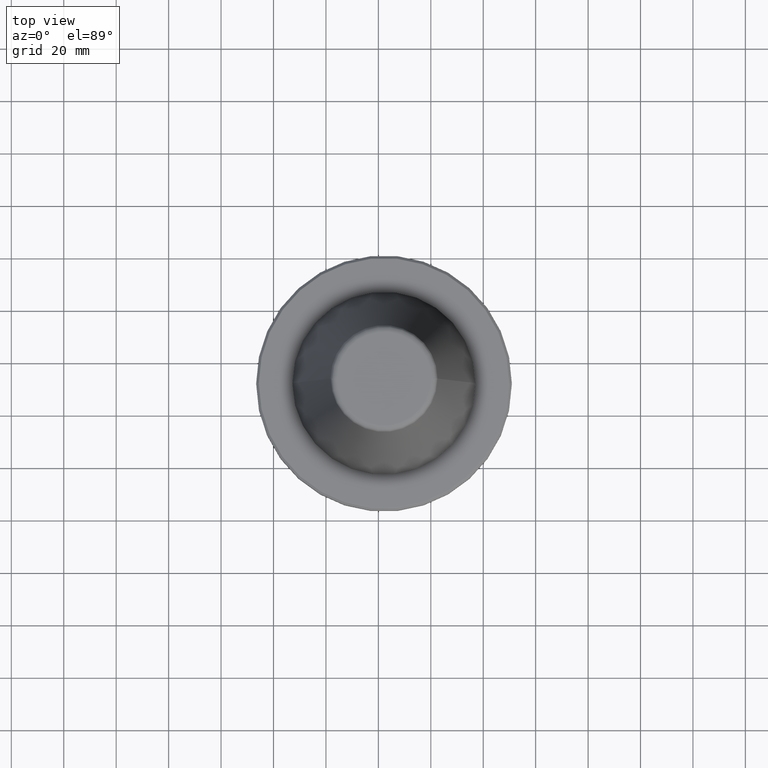
[diagram: clean part render]
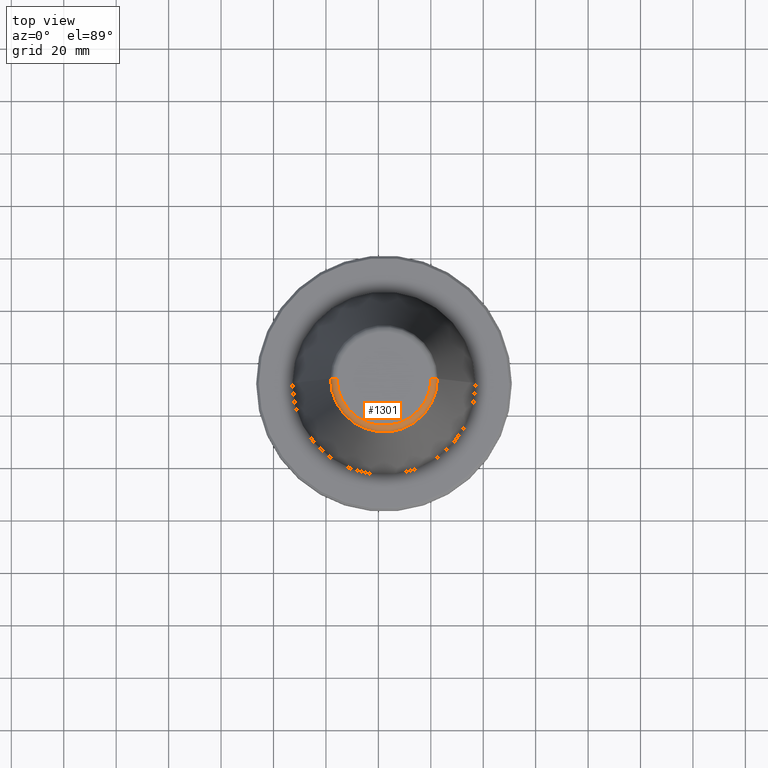
[diagram: same view with one face highlighted and labeled with its STEP entity id]
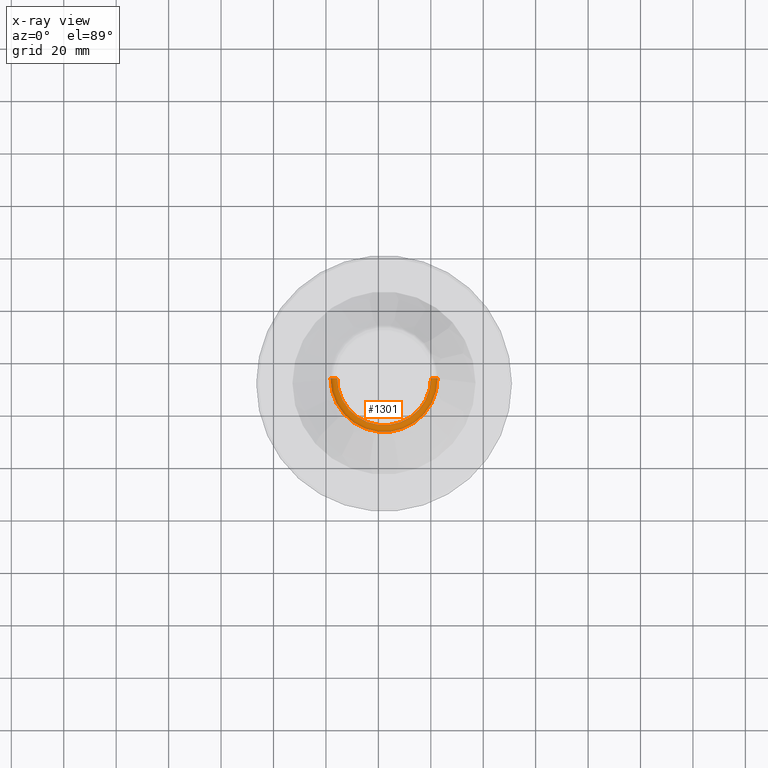
[diagram: x-ray of the same camera — body ghosted, the highlighted face saturated]
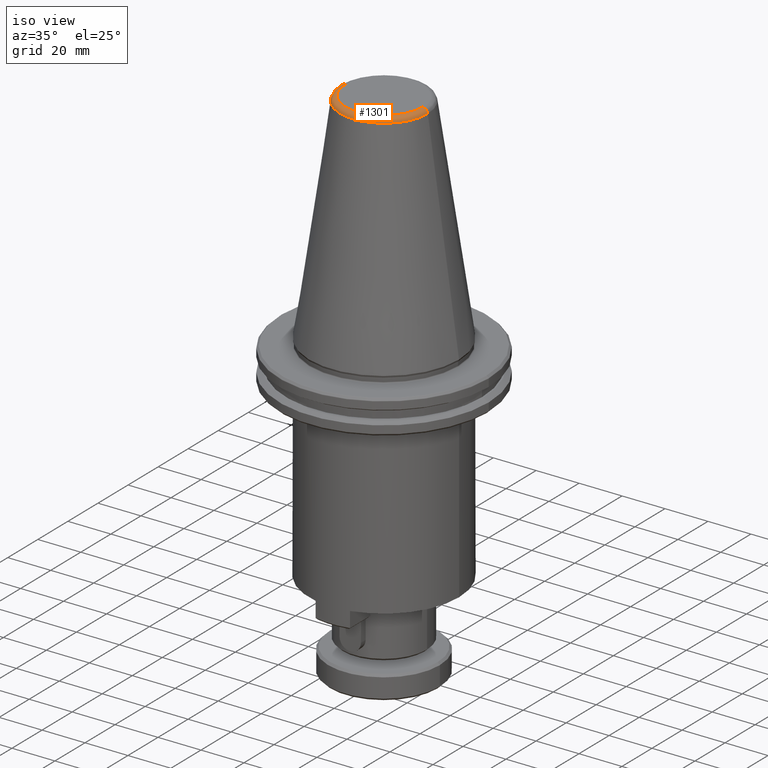
[diagram: same view with one face highlighted and labeled with its STEP entity id]
A machine part, top view. The second image highlights one B-rep face of the part: STEP entity #1301.
The next image is the same camera in x-ray: the body ghosted, the highlighted face saturated — about 0% of this face is hidden behind the body in this view.
A second angle (iso view) of the same face is appended — the face is thin or edge-on in the first view.
In plain terms, the highlighted toroidal blend (fillet) surface has major radius 17.9245 mm and minor (blend) radius 2.5 mm.
Its self-contained STEP definition (entity closure, byte-faithful):
#25 = AXIS2_PLACEMENT_3D ( 'NONE', #439, #209, #672 ) ;
#29 = EDGE_LOOP ( 'NONE', ( #1397, #1370, #862, #963 ) ) ;
#51 = CIRCLE ( 'NONE', #1929, 17.92455986125024500 ) ;
#129 = CARTESIAN_POINT ( 'NONE',  ( 140.0774724651962200, 190.0907862128020700, 325.5502788091370700 ) ) ;
#130 = CIRCLE ( 'NONE', #2536, 2.500000001662006100 ) ;
#157 = EDGE_CURVE ( 'NONE', #2380, #394, #130, .T. ) ;
#209 = DIRECTION ( 'NONE',  ( -0.0000000000000000000, -0.0000000000000000000, -1.000000000000000000 ) ) ;
#394 = VERTEX_POINT ( 'NONE', #1580 ) ;
#439 = CARTESIAN_POINT ( 'NONE',  ( 122.1529126039459800, 190.0907862128020700, 323.0502788089659700 ) ) ;
#446 = AXIS2_PLACEMENT_3D ( 'NONE', #2694, #1297, #2919 ) ;
#493 = CARTESIAN_POINT ( 'NONE',  ( 104.2284524403489200, 190.0907862128020700, 323.0502788089659700 ) ) ;
#672 = DIRECTION ( 'NONE',  ( -1.000000000000000000, 0.0000000000000000000, 0.0000000000000000000 ) ) ;
#710 = DIRECTION ( 'NONE',  ( 0.0000000000000000000, 0.0000000000000000000, -1.000000000000000000 ) ) ;
#862 = ORIENTED_EDGE ( 'NONE', *, *, #157, .T. ) ;
#934 = EDGE_CURVE ( 'NONE', #2534, #394, #2404, .T. ) ;
#963 = ORIENTED_EDGE ( 'NONE', *, *, #934, .F. ) ;
#976 = AXIS2_PLACEMENT_3D ( 'NONE', #2433, #1029, #2661 ) ;
#1029 = DIRECTION ( 'NONE',  ( -1.224646799147353200E-016, 1.000000000000000000, 0.0000000000000000000 ) ) ;
#1064 = CARTESIAN_POINT ( 'NONE',  ( 104.2283527426957300, 190.0907862128020700, 325.5502788091370700 ) ) ;
#1109 = DIRECTION ( 'NONE',  ( -0.0000000000000000000, -0.0000000000000000000, -1.000000000000000000 ) ) ;
#1266 = EDGE_CURVE ( 'NONE', #2329, #2380, #51, .T. ) ;
#1297 = DIRECTION ( 'NONE',  ( -0.0000000000000000000, -0.0000000000000000000, -1.000000000000000000 ) ) ;
#1301 = ADVANCED_FACE ( 'NONE', ( #2889 ), #1601, .T. ) ;
#1370 = ORIENTED_EDGE ( 'NONE', *, *, #1266, .T. ) ;
#1397 = ORIENTED_EDGE ( 'NONE', *, *, #1864, .F. ) ;
#1580 = CARTESIAN_POINT ( 'NONE',  ( 101.7546204724706600, 190.0907862128020700, 323.4110493773521900 ) ) ;
#1601 = TOROIDAL_SURFACE ( 'NONE', #25, 17.92446016359705000, 2.500000001662014100 ) ;
#1864 = EDGE_CURVE ( 'NONE', #2329, #2534, #2072, .T. ) ;
#1929 = AXIS2_PLACEMENT_3D ( 'NONE', #2508, #1109, #2733 ) ;
#2072 = CIRCLE ( 'NONE', #976, 2.500000001662006100 ) ;
#2109 = DIRECTION ( 'NONE',  ( 0.0000000000000000000, -1.000000000000000000, 0.0000000000000000000 ) ) ;
#2329 = VERTEX_POINT ( 'NONE', #129 ) ;
#2380 = VERTEX_POINT ( 'NONE', #1064 ) ;
#2404 = CIRCLE ( 'NONE', #446, 20.39829213147531600 ) ;
#2433 = CARTESIAN_POINT ( 'NONE',  ( 140.0773727675430400, 190.0907862128020700, 323.0502788089659700 ) ) ;
#2508 = CARTESIAN_POINT ( 'NONE',  ( 122.1529126039459800, 190.0907862128020700, 325.5502788091370700 ) ) ;
#2534 = VERTEX_POINT ( 'NONE', #2927 ) ;
#2536 = AXIS2_PLACEMENT_3D ( 'NONE', #493, #2109, #710 ) ;
#2661 = DIRECTION ( 'NONE',  ( -1.000000000000000000, 0.0000000000000000000, 0.0000000000000000000 ) ) ;
#2694 = CARTESIAN_POINT ( 'NONE',  ( 122.1529126039459800, 190.0907862128020700, 323.4110493773521900 ) ) ;
#2733 = DIRECTION ( 'NONE',  ( -1.000000000000000000, 0.0000000000000000000, 0.0000000000000000000 ) ) ;
#2889 = FACE_OUTER_BOUND ( 'NONE', #29, .T. ) ;
#2919 = DIRECTION ( 'NONE',  ( -1.000000000000000000, 0.0000000000000000000, 0.0000000000000000000 ) ) ;
#2927 = CARTESIAN_POINT ( 'NONE',  ( 142.5512047354212700, 190.0907862128020700, 323.4110493773521900 ) ) ;